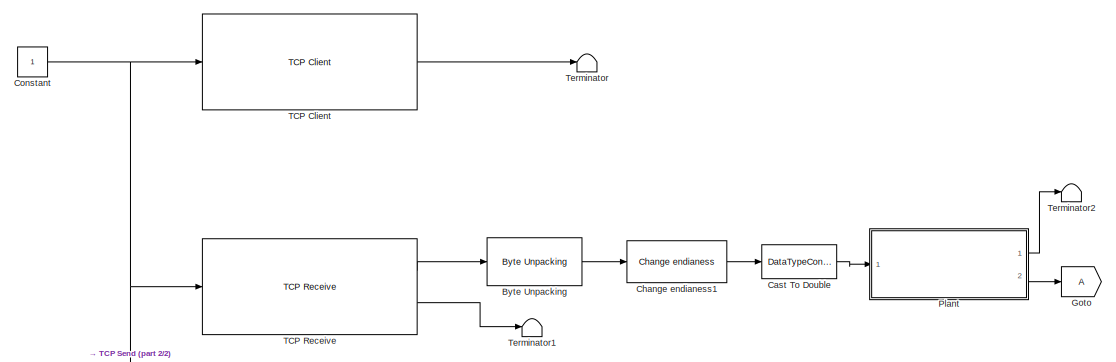
[diagram: root canvas - part 1/2, central region]
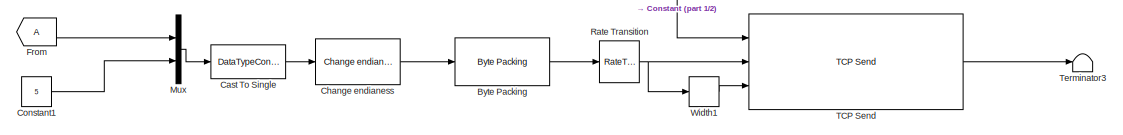
[diagram: root canvas - part 2/2, bottom center region]
MODEL slx_c6f22f977953
KIND model
CONFIG AbsTol = auto
CONFIG EnableMultiTasking = off
CONFIG FixedStep = 1e-4
CONFIG MaxStep = auto
CONFIG MinStep = auto
CONFIG RelTol = 1e-3
CONFIG SampleTimeConstraint = Unconstrained
CONFIG SolverName = FixedStepAuto
CONFIG StartTime = 0.0
CONFIG StopTime = 10
BLOCK [Reference] Byte Packing  REF=slrealtimeutilitieslib/Byte Packing
  Ports = [1, 1]
  SourceBlock = slrealtimeutilitieslib/Byte Packing
  SourceProductBaseCode = XP
  SourceType = slrealtimebytepacking
BLOCK [Reference] Byte Unpacking  REF=slrealtimeutilitieslib/Byte Unpacking
  Ports = [1, 1]
  SourceBlock = slrealtimeutilitieslib/Byte Unpacking
  SourceProductBaseCode = XP
  SourceType = slreraltimebytepacking
BLOCK [DataTypeConversion] Cast To Double
  OutDataTypeStr = double
  RndMeth = Floor
  SaturateOnIntegerOverflow = off
BLOCK [DataTypeConversion] Cast To Single
  OutDataTypeStr = single
  RndMeth = Floor
  SaturateOnIntegerOverflow = off
BLOCK [Reference] Change endianess  REF=slrealtimesharedmemorylib/Change endianess
  Ports = [1, 1]
  SourceBlock = slrealtimesharedmemorylib/Change endianess
  SourceProductBaseCode = XP
  SourceType = slreverseendian
BLOCK [Reference] Change endianess1  REF=slrealtimesharedmemorylib/Change endianess
  Ports = [1, 1]
  SourceBlock = slrealtimesharedmemorylib/Change endianess
  SourceProductBaseCode = XP
  SourceType = slreverseendian
BLOCK [Constant] Constant
BLOCK [Constant] Constant1
  Value = 5
BLOCK [From] From
BLOCK [Goto] Goto
BLOCK [Mux] Mux
  DisplayOption = bar
  Inputs = 2
  Ports = [2, 1]
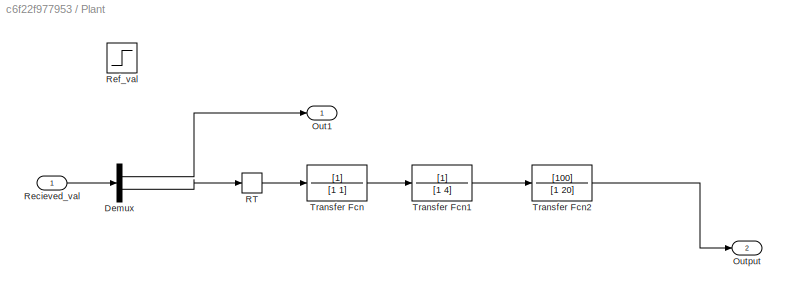
BLOCK [SubSystem] Plant
  Ports = [1, 2]
  RequestExecContextInheritance = off
BLOCK [Demux] Plant/Demux
  Outputs = 2
  Ports = [1, 2]
BLOCK [Outport] Plant/Out1
BLOCK [Outport] Plant/Output
  Port = 2
BLOCK [RateTransition] Plant/RT
  Deterministic = off
  OutPortSampleTime = 0.0001
BLOCK [Inport] Plant/Recieved_val
BLOCK [Step] Plant/Ref_val
  Commented = on
  SampleTime = 0
BLOCK [TransferFcn] Plant/Transfer Fcn
  Denominator = [1 1]
BLOCK [TransferFcn] Plant/Transfer Fcn1
  Denominator = [1 4]
BLOCK [TransferFcn] Plant/Transfer Fcn2
  Denominator = [1 20]
  Numerator = [100]
BLOCK [RateTransition] Rate Transition
  Deterministic = off
  OutPortSampleTime = 5e-3
BLOCK [Reference] TCP Client  REF=slrealtimeiplib/TCP Client
  Ports = [1, 1]
  Priority = -1
  SourceBlock = slrealtimeiplib/TCP Client
  SourceProductBaseCode = XP
  SourceType = slrealtimetcpclient
BLOCK [Reference] TCP Receive  REF=slrealtimeiplib/TCP Receive
  Ports = [1, 2]
  SourceBlock = slrealtimeiplib/TCP Receive
  SourceProductBaseCode = XP
  SourceType = slrealtimetcpreceive
BLOCK [Reference] TCP Send  REF=slrealtimeiplib/TCP Send
  Ports = [3, 1]
  SourceBlock = slrealtimeiplib/TCP Send
  SourceProductBaseCode = XP
  SourceType = slrealtimetcpsend
BLOCK [Terminator] Terminator
BLOCK [Terminator] Terminator1
BLOCK [Terminator] Terminator2
BLOCK [Terminator] Terminator3
BLOCK [Width] Width1
LINE Byte Packing:1 -> Rate Transition:1
LINE Byte Unpacking:1 -> Change endianess1:1
LINE Cast To Double:1 -> Plant:1
LINE Cast To Single:1 -> Change endianess:1
LINE Change endianess1:1 -> Cast To Double:1
LINE Change endianess:1 -> Byte Packing:1
LINE Constant1:1 -> Mux:2
NET Constant:1 -> TCP Client:1, TCP Receive:1, TCP Send:1
LINE From:1 -> Mux:1
LINE Mux:1 -> Cast To Single:1
LINE Plant/Demux:1 -> Plant/Out1:1
LINE Plant/Demux:2 -> Plant/RT:1
LINE Plant/RT:1 -> Plant/Transfer Fcn:1
LINE Plant/Recieved_val:1 -> Plant/Demux:1
LINE Plant/Transfer Fcn1:1 -> Plant/Transfer Fcn2:1
LINE Plant/Transfer Fcn2:1 -> Plant/Output:1
LINE Plant/Transfer Fcn:1 -> Plant/Transfer Fcn1:1
LINE Plant:1 -> Terminator2:1
LINE Plant:2 -> Goto:1
NET Rate Transition:1 -> TCP Send:2, Width1:1
LINE TCP Client:1 -> Terminator:1
LINE TCP Receive:1 -> Byte Unpacking:1
LINE TCP Receive:2 -> Terminator1:1
LINE TCP Send:1 -> Terminator3:1
LINE Width1:1 -> TCP Send:3
note: NET lines group one-source signal fan-out (src -> all destinations, sorted); 1:1 wires keep LINE
